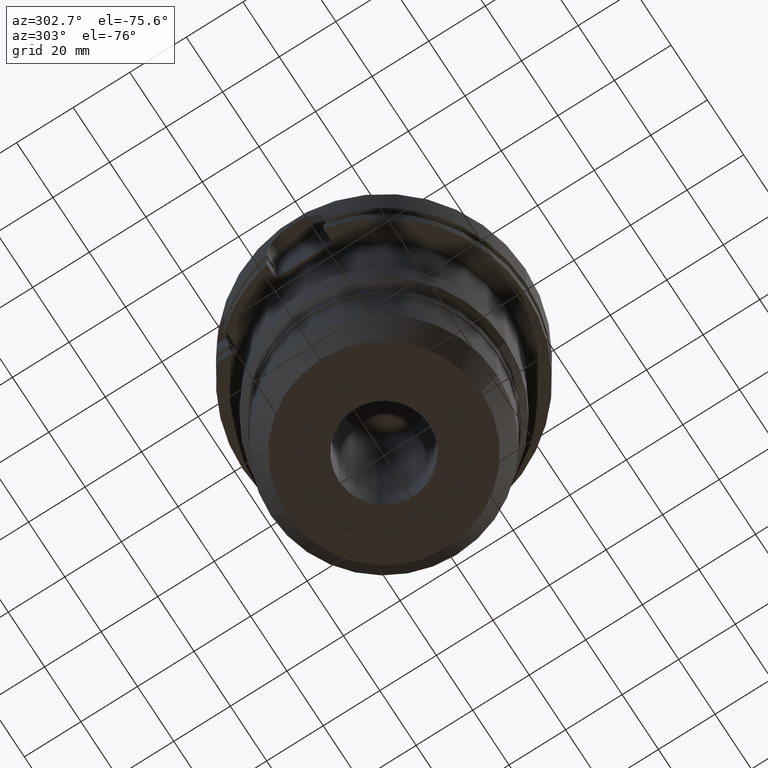
[diagram: clean part render]
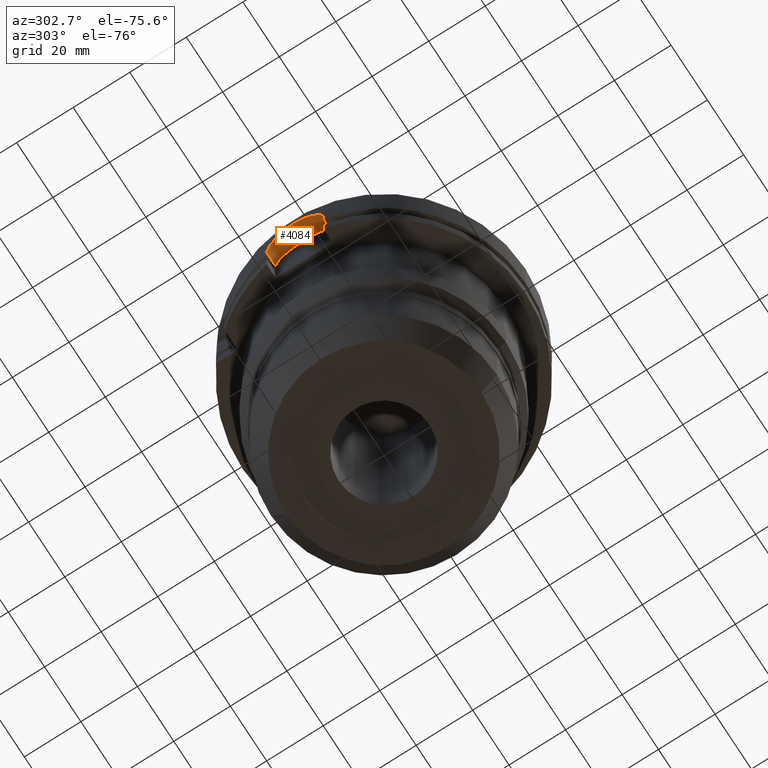
[diagram: same view with one face highlighted and labeled with its STEP entity id]
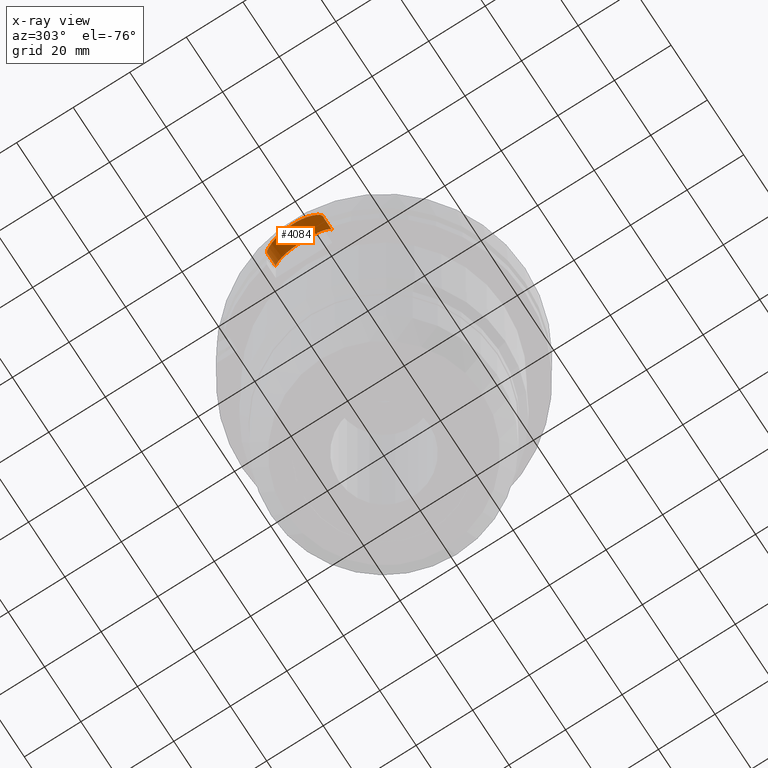
[diagram: x-ray of the same camera — body ghosted, the highlighted face saturated]
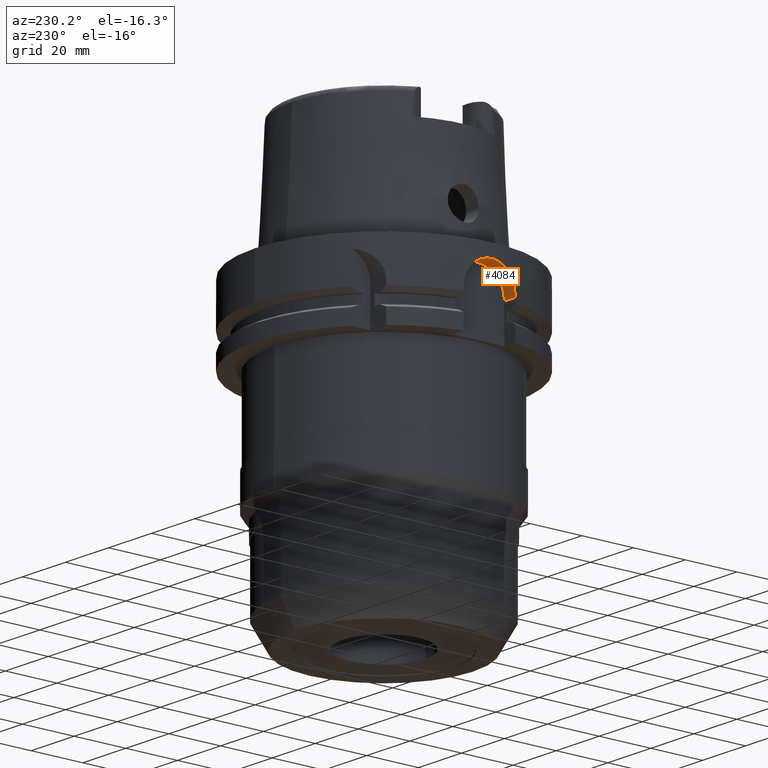
[diagram: same view with one face highlighted and labeled with its STEP entity id]
A machine part, auxiliary view. The second image highlights one B-rep face of the part: STEP entity #4084.
The next image is the same camera in x-ray: the body ghosted, the highlighted face saturated — about 0% of this face is hidden behind the body in this view.
A second angle (auxiliary view) of the same face is appended — the face is thin or edge-on in the first view.
In plain terms, the highlighted cylindrical surface (edge-blend (fillet) strip) has radius 10 mm, axis along (1, 0, 0).
Its self-contained STEP definition (entity closure, byte-faithful):
#1468=CARTESIAN_POINT('',(-4.4E1,0.E0,-1.5E1));
#1469=DIRECTION('',(1.E0,0.E0,0.E0));
#1470=DIRECTION('',(0.E0,1.E0,0.E0));
#1471=AXIS2_PLACEMENT_3D('',#1468,#1469,#1470);
#1476=CARTESIAN_POINT('',(-4.4E1,0.E0,-1.5E1));
#1477=DIRECTION('',(1.E0,0.E0,0.E0));
#1478=DIRECTION('',(0.E0,0.E0,1.E0));
#1479=AXIS2_PLACEMENT_3D('',#1476,#1477,#1478);
#2040=CARTESIAN_POINT('',(-4.898979485566E1,1.E1,-1.5E1));
#2041=CARTESIAN_POINT('',(-4.898979485566E1,1.E1,-1.426108333608E1));
#2042=CARTESIAN_POINT('',(-4.902380401862E1,9.835573151438E0,
-1.277773784127E1));
#2043=CARTESIAN_POINT('',(-4.916882500925E1,9.096390952841E0,
-1.064602758733E1));
#2044=CARTESIAN_POINT('',(-4.938004915367E1,7.892536896943E0,
-8.720777301160E0));
#2045=CARTESIAN_POINT('',(-4.961472987531E1,6.281193308117E0,
-7.108977893451E0));
#2046=CARTESIAN_POINT('',(-4.982397991511E1,4.355986659051E0,
-5.904663006864E0));
#2047=CARTESIAN_POINT('',(-4.996651784980E1,2.226278059959E0,
-5.165424496412E0));
#2048=CARTESIAN_POINT('',(-5.001677334087E1,-1.478567922975E-3,
-4.917124512188E0));
#2049=CARTESIAN_POINT('',(-4.996638812273E1,-2.229127410983E0,
-5.166078094846E0));
#2050=CARTESIAN_POINT('',(-4.982375145426E1,-4.358568167481E0,
-5.905888834335E0));
#2051=CARTESIAN_POINT('',(-4.961443093855E1,-6.283534520441E0,
-7.110860241108E0));
#2052=CARTESIAN_POINT('',(-4.937976575321E1,-7.894254786705E0,
-8.722905024353E0));
#2053=CARTESIAN_POINT('',(-4.916856874039E1,-9.097827906167E0,
-1.064902036091E1));
#2054=CARTESIAN_POINT('',(-4.902370127757E1,-9.835971267135E0,
-1.278006452788E1));
#2055=CARTESIAN_POINT('',(-4.898979485566E1,-1.E1,-1.426200333312E1));
#2056=CARTESIAN_POINT('',(-4.898979485566E1,-1.E1,-1.5E1));
#2061=DIRECTION('',(1.E0,4.627973610178E-14,0.E0));
#2062=VECTOR('',#2061,4.989794855661E0);
#2063=CARTESIAN_POINT('',(-4.898979485566E1,-1.E1,-1.5E1));
#2064=LINE('',#2063,#2062);
#2068=DIRECTION('',(-1.E0,4.627973610178E-14,0.E0));
#2069=VECTOR('',#2068,4.989794855661E0);
#2070=CARTESIAN_POINT('',(-4.4E1,1.E1,-1.5E1));
#2071=LINE('',#2070,#2069);
#2508=CARTESIAN_POINT('',(-4.4E1,-1.E1,-1.5E1));
#2509=VERTEX_POINT('',#2508);
#2510=CARTESIAN_POINT('',(-4.898979485566E1,-1.E1,-1.5E1));
#2511=VERTEX_POINT('',#2510);
#2521=CARTESIAN_POINT('',(-4.4E1,1.E1,-1.5E1));
#2522=VERTEX_POINT('',#2521);
#2523=CARTESIAN_POINT('',(-4.4E1,0.E0,-5.E0));
#2524=VERTEX_POINT('',#2523);
#2533=CARTESIAN_POINT('',(-4.898979485566E1,1.E1,-1.5E1));
#2534=VERTEX_POINT('',#2533);
#4072=CARTESIAN_POINT('',(-5.E1,0.E0,-1.5E1));
#4073=DIRECTION('',(1.E0,0.E0,0.E0));
#4074=DIRECTION('',(0.E0,0.E0,1.E0));
#4075=AXIS2_PLACEMENT_3D('',#4072,#4073,#4074);
#4076=CYLINDRICAL_SURFACE('',#4075,1.E1);
#4077=ORIENTED_EDGE('',*,*,#3830,.T.);
#4078=ORIENTED_EDGE('',*,*,#3702,.T.);
#4079=ORIENTED_EDGE('',*,*,#3730,.F.);
#4080=ORIENTED_EDGE('',*,*,#3728,.F.);
#4081=ORIENTED_EDGE('',*,*,#3756,.T.);
#4082=EDGE_LOOP('',(#4077,#4078,#4079,#4080,#4081));
#4083=FACE_OUTER_BOUND('',#4082,.F.);
#1472=CIRCLE('',#1471,1.E1);
#1480=CIRCLE('',#1479,1.E1);
#2057=B_SPLINE_CURVE_WITH_KNOTS('',3,(#2040,#2041,#2042,#2043,#2044,#2045,#2046,
#2047,#2048,#2049,#2050,#2051,#2052,#2053,#2054,#2055,#2056),.UNSPECIFIED.,.F.,
.F.,(4,1,1,1,1,1,1,1,1,1,1,1,1,1,4),(0.E0,7.142857142857E-2,1.428571428571E-1,
2.142857142857E-1,2.857142857143E-1,3.571428571429E-1,4.285714285714E-1,5.E-1,
5.714285714286E-1,6.428571428571E-1,7.142857142857E-1,7.857142857143E-1,
8.571428571429E-1,9.285714285714E-1,1.E0),.UNSPECIFIED.);
#3702=EDGE_CURVE('',#2511,#2509,#2064,.T.);
#3728=EDGE_CURVE('',#2522,#2524,#1472,.T.);
#3730=EDGE_CURVE('',#2524,#2509,#1480,.T.);
#3756=EDGE_CURVE('',#2522,#2534,#2071,.T.);
#3830=EDGE_CURVE('',#2534,#2511,#2057,.T.);
#4084=ADVANCED_FACE('',(#4083),#4076,.F.);